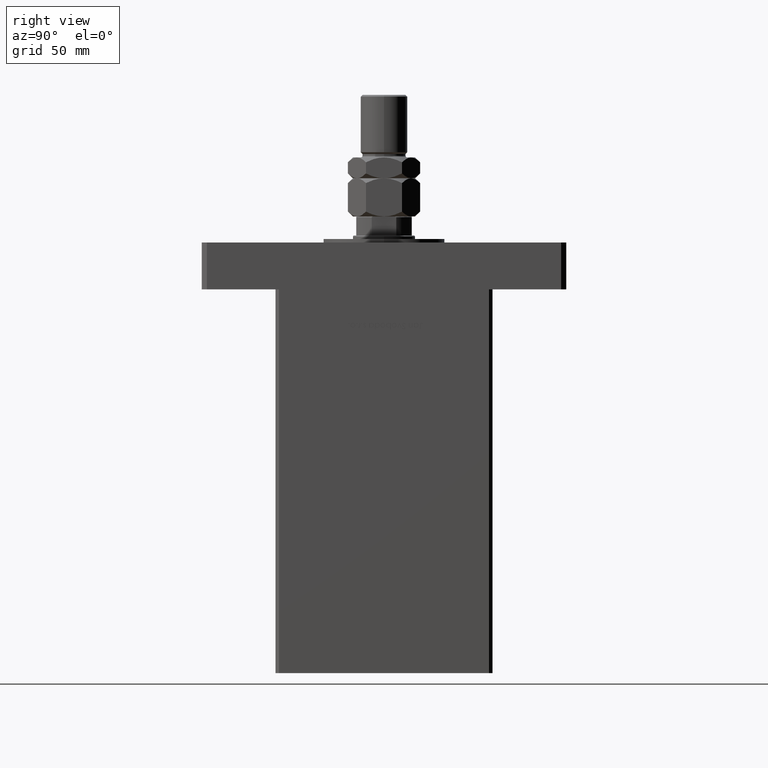
[diagram: clean part render]
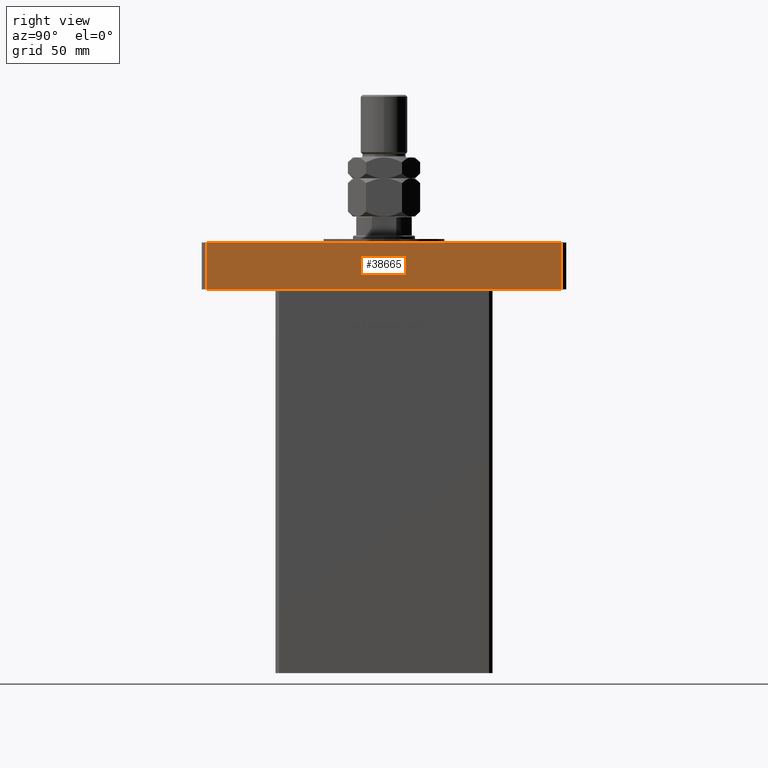
[diagram: same view with one face highlighted and labeled with its STEP entity id]
A machine part, right view. The second image highlights one B-rep face of the part: STEP entity #38665.
In plain terms, the highlighted planar face has unit normal (-1, 0, 0).
Its self-contained STEP definition (entity closure, byte-faithful):
#697 = CARTESIAN_POINT ( 'NONE',  ( 75.00000000000000000, -101.9999999999999005, 0.000000000000000000 ) ) ;
#784 = EDGE_CURVE ( 'NONE', #24772, #46989, #18748, .T. ) ;
#3848 = EDGE_CURVE ( 'NONE', #53408, #25965, #49224, .T. ) ;
#4420 = AXIS2_PLACEMENT_3D ( 'NONE', #28798, #54749, #54172 ) ;
#9071 = LINE ( 'NONE', #697, #52345 ) ;
#10981 = CARTESIAN_POINT ( 'NONE',  ( 75.00000000000000000, -101.9999999999999005, 27.00000000000000000 ) ) ;
#13098 = CARTESIAN_POINT ( 'NONE',  ( 75.00000000000000000, -101.9999999999999005, 0.000000000000000000 ) ) ;
#14286 = DIRECTION ( 'NONE',  ( -0.000000000000000000, -0.000000000000000000, -1.000000000000000000 ) ) ;
#14595 = CARTESIAN_POINT ( 'NONE',  ( 75.00000000000000000, -101.9999999999999005, 27.00000000000000000 ) ) ;
#15525 = ORIENTED_EDGE ( 'NONE', *, *, #31553, .T. ) ;
#17598 = CARTESIAN_POINT ( 'NONE',  ( 75.00000000000001421, 102.0000000000000142, 27.00000000000000000 ) ) ;
#17669 = ORIENTED_EDGE ( 'NONE', *, *, #34466, .F. ) ;
#18582 = VECTOR ( 'NONE', #14286, 1000.000000000000000 ) ;
#18748 = LINE ( 'NONE', #31078, #18582 ) ;
#20431 = LINE ( 'NONE', #55058, #22103 ) ;
#20717 = DIRECTION ( 'NONE',  ( 6.802837160693364103E-17, 1.000000000000000000, 0.000000000000000000 ) ) ;
#22103 = VECTOR ( 'NONE', #20717, 1000.000000000000000 ) ;
#24772 = VERTEX_POINT ( 'NONE', #17598 ) ;
#25965 = VERTEX_POINT ( 'NONE', #13098 ) ;
#27554 = VECTOR ( 'NONE', #28014, 1000.000000000000000 ) ;
#28014 = DIRECTION ( 'NONE',  ( -0.000000000000000000, -0.000000000000000000, -1.000000000000000000 ) ) ;
#28798 = CARTESIAN_POINT ( 'NONE',  ( 75.00000000000000000, -101.9999999999999005, 27.00000000000000000 ) ) ;
#31078 = CARTESIAN_POINT ( 'NONE',  ( 75.00000000000001421, 102.0000000000000142, 27.00000000000000000 ) ) ;
#31362 = ORIENTED_EDGE ( 'NONE', *, *, #784, .F. ) ;
#31553 = EDGE_CURVE ( 'NONE', #25965, #46989, #9071, .T. ) ;
#34466 = EDGE_CURVE ( 'NONE', #53408, #24772, #20431, .T. ) ;
#35245 = CARTESIAN_POINT ( 'NONE',  ( 75.00000000000001421, 102.0000000000000142, 0.000000000000000000 ) ) ;
#37995 = PLANE ( 'NONE',  #4420 ) ;
#38665 = ADVANCED_FACE ( 'NONE', ( #42456 ), #37995, .F. ) ;
#41064 = EDGE_LOOP ( 'NONE', ( #15525, #31362, #17669, #48755 ) ) ;
#42456 = FACE_OUTER_BOUND ( 'NONE', #41064, .T. ) ;
#46989 = VERTEX_POINT ( 'NONE', #35245 ) ;
#48386 = DIRECTION ( 'NONE',  ( 6.802837160693364103E-17, 1.000000000000000000, 0.000000000000000000 ) ) ;
#48755 = ORIENTED_EDGE ( 'NONE', *, *, #3848, .T. ) ;
#49224 = LINE ( 'NONE', #10981, #27554 ) ;
#52345 = VECTOR ( 'NONE', #48386, 1000.000000000000000 ) ;
#53408 = VERTEX_POINT ( 'NONE', #14595 ) ;
#54172 = DIRECTION ( 'NONE',  ( -6.802837160693364103E-17, -1.000000000000000000, 0.000000000000000000 ) ) ;
#54749 = DIRECTION ( 'NONE',  ( -1.000000000000000000, 6.802837160693364103E-17, 0.000000000000000000 ) ) ;
#55058 = CARTESIAN_POINT ( 'NONE',  ( 75.00000000000000000, -101.9999999999999005, 27.00000000000000000 ) ) ;